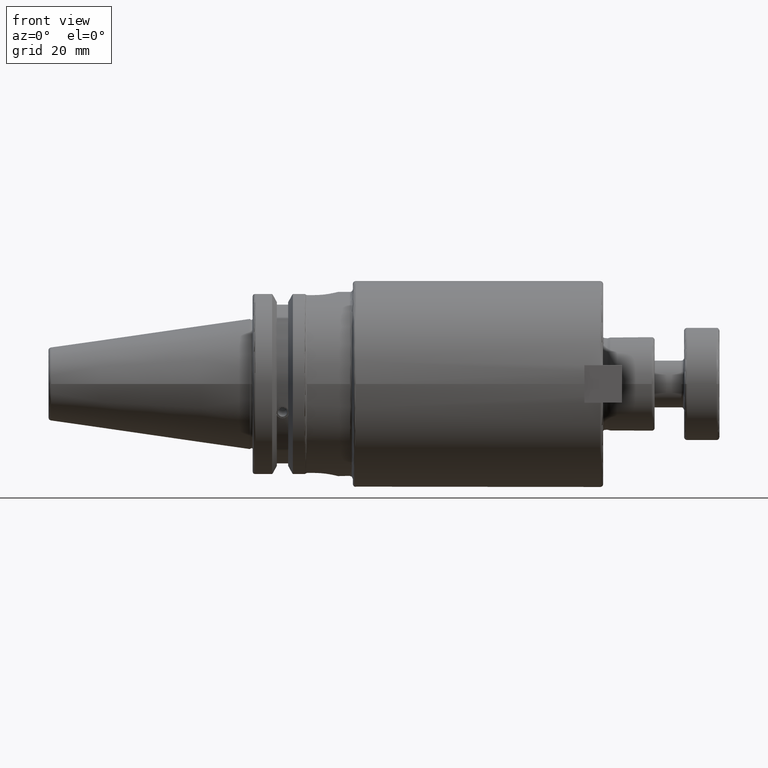
[diagram: clean part render]
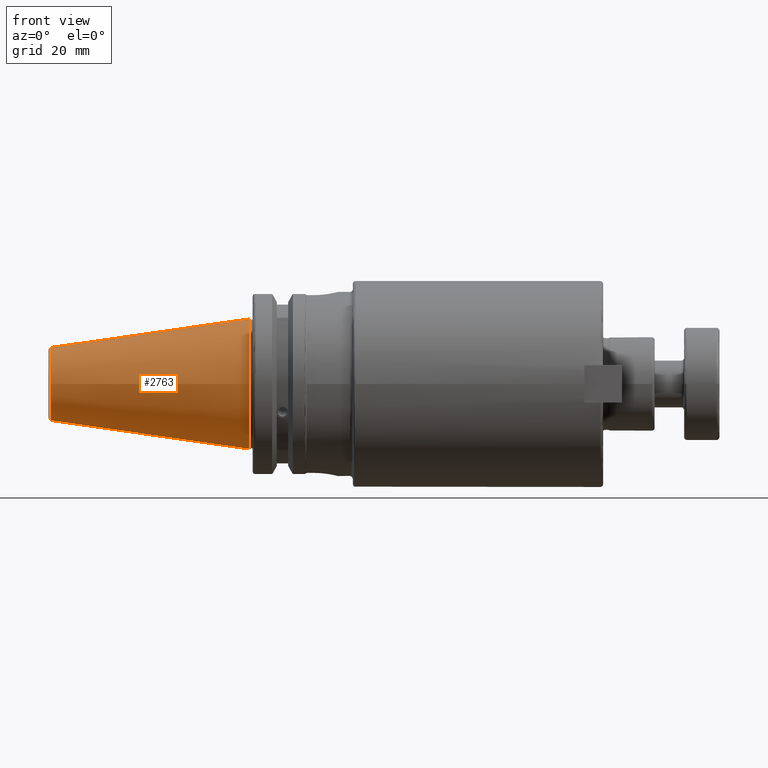
[diagram: same view with one face highlighted and labeled with its STEP entity id]
A machine part, front view. The second image highlights one B-rep face of the part: STEP entity #2763.
In plain terms, the highlighted conical surface has half-angle 8.297 deg.
Its self-contained STEP definition (entity closure, byte-faithful):
#133=CONICAL_SURFACE('',#3139,17.2484375,0.144812498238939);
#324=FACE_OUTER_BOUND('',#501,.T.);
#501=EDGE_LOOP('',(#2283,#2284,#2285,#2286,#2287));
#675=CIRCLE('',#3133,12.3966635780937);
#676=CIRCLE('',#3134,12.3966635780937);
#680=CIRCLE('',#3140,22.225);
#842=LINE('',#5119,#1015);
#1015=VECTOR('',#3789,17.2484375);
#1313=VERTEX_POINT('',#5106);
#1314=VERTEX_POINT('',#5107);
#1317=VERTEX_POINT('',#5117);
#1665=EDGE_CURVE('',#1313,#1314,#675,.T.);
#1666=EDGE_CURVE('',#1314,#1313,#676,.T.);
#1670=EDGE_CURVE('',#1317,#1317,#680,.T.);
#1671=EDGE_CURVE('',#1317,#1314,#842,.T.);
#2283=ORIENTED_EDGE('',*,*,#1670,.F.);
#2284=ORIENTED_EDGE('',*,*,#1671,.T.);
#2285=ORIENTED_EDGE('',*,*,#1665,.F.);
#2286=ORIENTED_EDGE('',*,*,#1666,.F.);
#2287=ORIENTED_EDGE('',*,*,#1671,.F.);
#2763=ADVANCED_FACE('',(#324),#133,.T.);
#3133=AXIS2_PLACEMENT_3D('',#5108,#3773,#3774);
#3134=AXIS2_PLACEMENT_3D('',#5109,#3775,#3776);
#3139=AXIS2_PLACEMENT_3D('',#5116,#3785,#3786);
#3140=AXIS2_PLACEMENT_3D('',#5118,#3787,#3788);
#3773=DIRECTION('center_axis',(-1.,0.,0.));
#3774=DIRECTION('ref_axis',(0.,-1.,3.06161699786838E-17));
#3775=DIRECTION('center_axis',(-1.,0.,0.));
#3776=DIRECTION('ref_axis',(0.,-1.,3.06161699786838E-17));
#3785=DIRECTION('center_axis',(1.,0.,0.));
#3786=DIRECTION('ref_axis',(0.,1.,0.));
#3787=DIRECTION('center_axis',(1.,0.,0.));
#3788=DIRECTION('ref_axis',(0.,0.,-1.));
#3789=DIRECTION('',(-0.989532981063282,0.144306893071729,1.76724974695192E-17));
#5106=CARTESIAN_POINT('',(-67.3943068930717,-1.5181534371019E-15,12.3966635780937));
#5107=CARTESIAN_POINT('',(-67.3943068930718,-12.3966635780937,-1.5181534371019E-15));
#5108=CARTESIAN_POINT('Origin',(-67.3943068930717,0.,-1.89769179637738E-15));
#5109=CARTESIAN_POINT('Origin',(-67.3943068930717,0.,-1.89769179637738E-15));
#5116=CARTESIAN_POINT('Origin',(-34.125,0.,0.));
#5117=CARTESIAN_POINT('',(0.,-22.225,-2.72177751110499E-15));
#5118=CARTESIAN_POINT('Origin',(0.,0.,0.));
#5119=CARTESIAN_POINT('',(-34.125,-17.2484375,-2.11232437746682E-15));